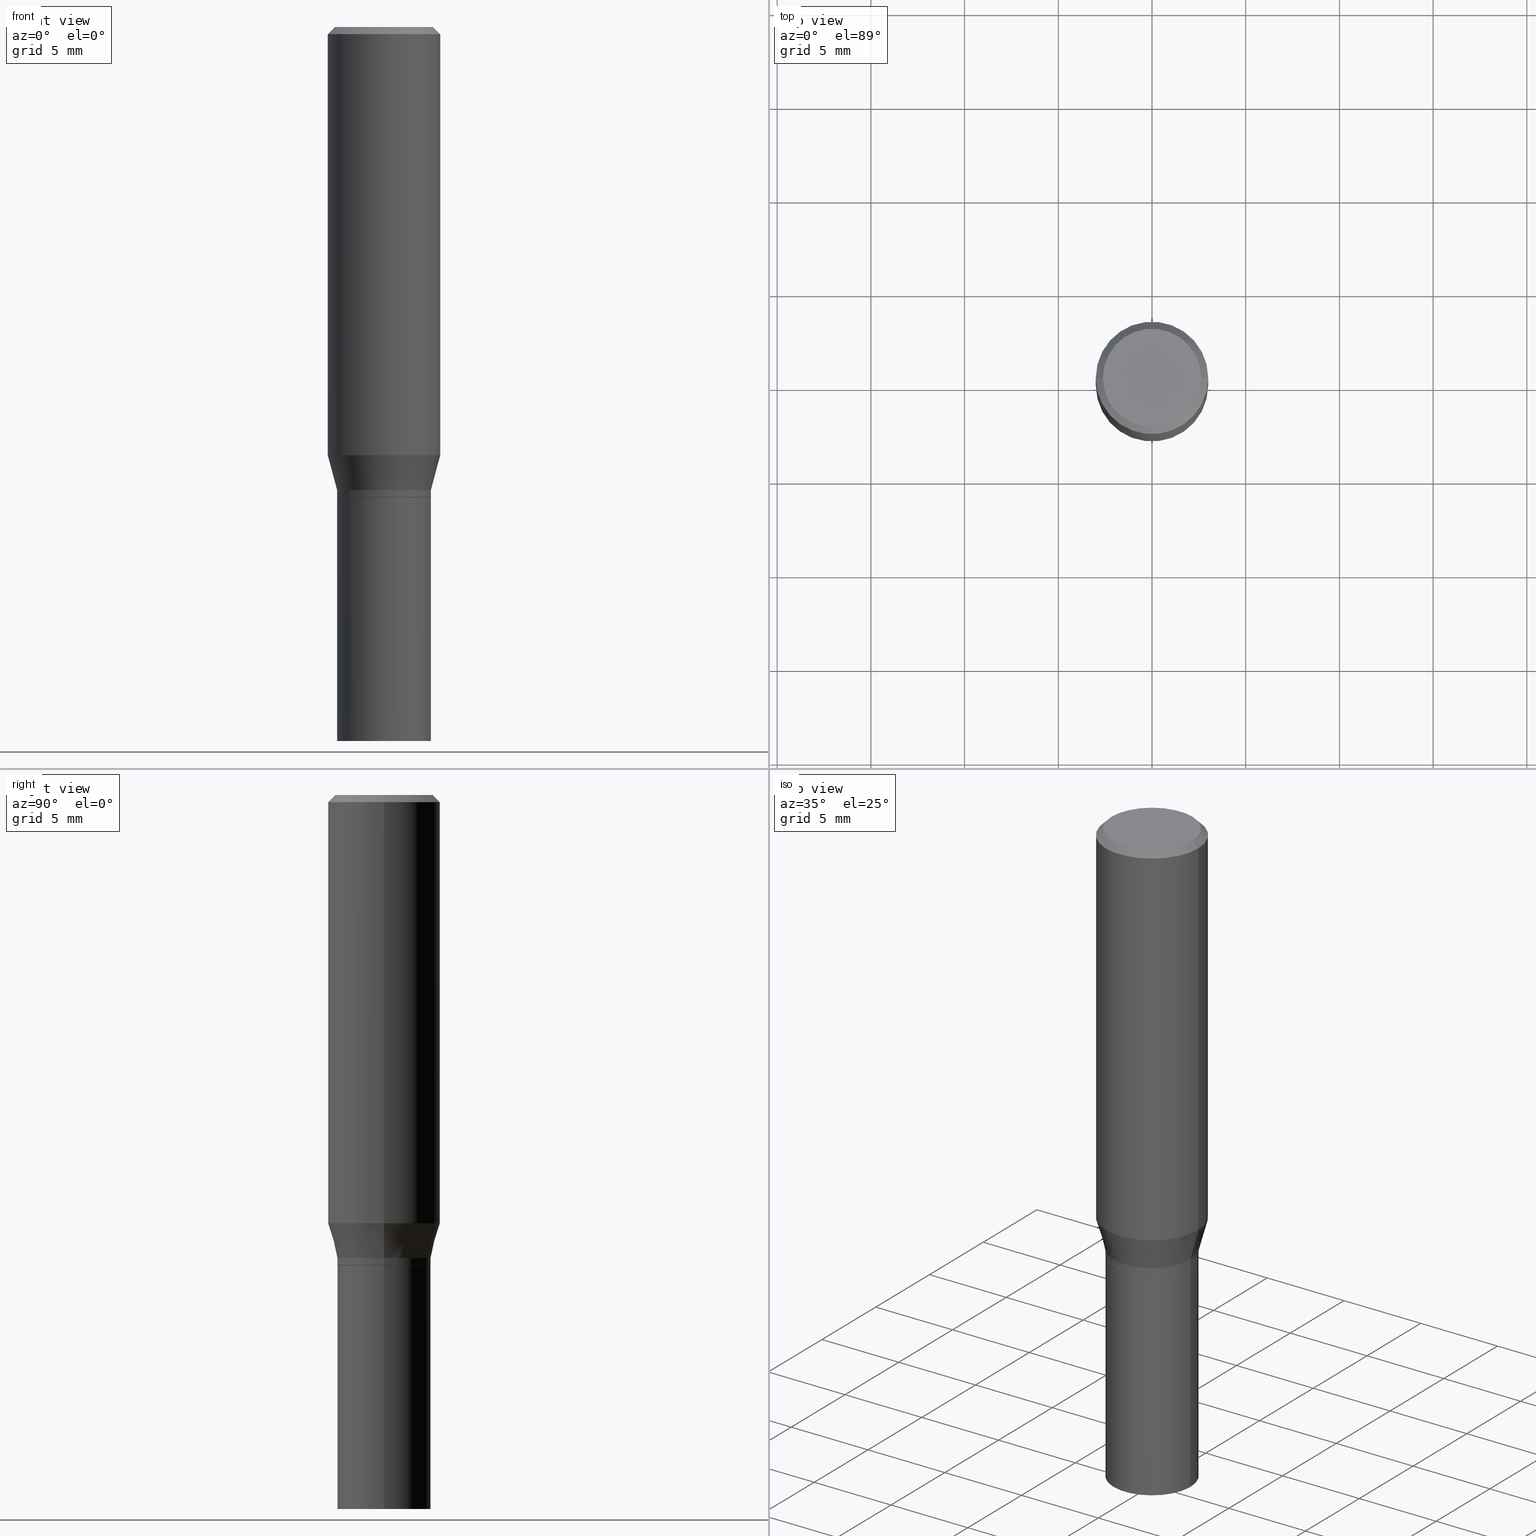
[diagram: canonical four-view strip — front | top / right | iso, engineering-drawing reading convention]
A machine part, canonical four-view strip (front | top / right | iso — engineering-drawing reading convention). The complete STEP part file that produces these views, byte-faithful:
ISO-10303-21;
HEADER;
FILE_DESCRIPTION (( 'STEP AP203' ),
    '1' );
FILE_NAME ('45486.STEP',
    '2024-03-12T19:25:15',
    ( '' ),
    ( '' ),
    'SwSTEP 2.0',
    'SolidWorks 2023',
    '' );
FILE_SCHEMA (( 'CONFIG_CONTROL_DESIGN' ));
ENDSEC;

DATA;
#1 = DIRECTION ( 'NONE',  ( -2.445468806185136597E-29, 3.491481338843145583E-15, 1.000000000000000000 ) ) ;
#2 = ORIENTED_EDGE ( 'NONE', *, *, #189, .F. ) ;
#3 = AXIS2_PLACEMENT_3D ( 'NONE', #118, #369, #191 ) ;
#4 = CIRCLE ( 'NONE', #10, 0.1030999999999999833 ) ;
#5 = CALENDAR_DATE ( 2024, 12, 3 ) ;
#6 = CARTESIAN_POINT ( 'NONE',  ( 0.000000000000000000, 0.000000000000000000, 0.000000000000000000 ) ) ;
#7 = LINE ( 'NONE', #446, #15 ) ;
#8 = DIRECTION ( 'NONE',  ( -1.000000000000000000, 6.982962677686266711E-15, 0.000000000000000000 ) ) ;
#9 = AXIS2_PLACEMENT_3D ( 'NONE', #224, #405, #8 ) ;
#10 = AXIS2_PLACEMENT_3D ( 'NONE', #273, #454, #458 ) ;
#11 = DIRECTION ( 'NONE',  ( -2.445468806185136597E-29, 3.491481338843145583E-15, 1.000000000000000000 ) ) ;
#12 = DIRECTION ( 'NONE',  ( 0.7071067811865500152, -7.319954787623263934E-15, -0.7071067811865450192 ) ) ;
#13 = CARTESIAN_POINT ( 'NONE',  ( -0.1030999999999999833, 7.461295621107773480E-16, -6.716606437695998257E-17 ) ) ;
#14 = APPROVAL ( #231, 'UNSPECIFIED' ) ;
#15 = VECTOR ( 'NONE', #409, 39.37007874015748143 ) ;
#16 = CARTESIAN_POINT ( 'NONE',  ( 2.379441148418138489E-29, -3.397211342694381629E-15, -0.9730000000000001981 ) ) ;
#17 = PERSON_AND_ORGANIZATION_ROLE ( 'creator' ) ;
#18 = CARTESIAN_POINT ( 'NONE',  ( 0.09845000000000005136, -6.874726756182133489E-16, 4.800596035771100615E-30 ) ) ;
#19 = ORIENTED_EDGE ( 'NONE', *, *, #332, .T. ) ;
#20 = CC_DESIGN_PERSON_AND_ORGANIZATION_ASSIGNMENT ( #466, #253, ( #453 ) ) ;
#21 = CARTESIAN_POINT ( 'NONE',  ( 2.416612274272152255E-29, -3.450281859044796915E-15, -0.9882000000000000783 ) ) ;
#22 = ORIENTED_EDGE ( 'NONE', *, *, #270, .F. ) ;
#23 = EDGE_LOOP ( 'NONE', ( #202, #406, #351, #205 ) ) ;
#24 = AXIS2_PLACEMENT_3D ( 'NONE', #232, #45, #89 ) ;
#25 = DIRECTION ( 'NONE',  ( 1.000000000000000000, -6.982962677686269077E-15, 0.000000000000000000 ) ) ;
#26 = CIRCLE ( 'NONE', #349, 0.09844999999999999585 ) ;
#27 = DIRECTION ( 'NONE',  ( -2.445468806185136877E-29, 3.491481338843145188E-15, 1.000000000000000000 ) ) ;
#28 = EDGE_LOOP ( 'NONE', ( #275, #239 ) ) ;
#29 = ADVANCED_FACE ( 'NONE', ( #37 ), #427, .T. ) ;
#30 = CARTESIAN_POINT ( 'NONE',  ( -0.1180999999999999966, -2.302013291769461857E-15, -0.8996652016312715050 ) ) ;
#31 = VERTEX_POINT ( 'NONE', #186 ) ;
#32 = ORIENTED_EDGE ( 'NONE', *, *, #332, .F. ) ;
#33 = CYLINDRICAL_SURFACE ( 'NONE', #50, 0.1180999999999999966 ) ;
#34 = VECTOR ( 'NONE', #234, 39.37007874015748143 ) ;
#35 = ORIENTED_EDGE ( 'NONE', *, *, #194, .F. ) ;
#36 = CALENDAR_DATE ( 2024, 12, 3 ) ;
#37 = FACE_OUTER_BOUND ( 'NONE', #71, .T. ) ;
#38 =( CONVERSION_BASED_UNIT ( 'INCH', #291 ) LENGTH_UNIT ( ) NAMED_UNIT ( #441 ) );
#39 = ADVANCED_FACE ( 'NONE', ( #331 ), #390, .T. ) ;
#40 = UNCERTAINTY_MEASURE_WITH_UNIT (LENGTH_MEASURE( 1.000000000000000082E-05 ), #38, 'distance_accuracy_value', 'NONE');
#41 = PERSON_AND_ORGANIZATION ( #443, #132 ) ;
#42 = DIRECTION ( 'NONE',  ( -2.445468806185136597E-29, 3.491481338843145583E-15, 1.000000000000000000 ) ) ;
#43 = AXIS2_PLACEMENT_3D ( 'NONE', #241, #376, #128 ) ;
#44 = APPROVAL_ROLE ( '' ) ;
#45 = DIRECTION ( 'NONE',  ( -2.445468806185136597E-29, 3.491481338843145583E-15, 1.000000000000000000 ) ) ;
#46 = ADVANCED_FACE ( 'NONE', ( #107 ), #108, .T. ) ;
#47 = DIRECTION ( 'NONE',  ( -2.445468806185136597E-29, 3.491481338843145583E-15, 1.000000000000000000 ) ) ;
#48 = CARTESIAN_POINT ( 'NONE',  ( 2.415389539869059734E-29, -3.448536118375375017E-15, -0.9877000000000001334 ) ) ;
#49 = AXIS2_PLACEMENT_3D ( 'NONE', #347, #312, #237 ) ;
#50 = AXIS2_PLACEMENT_3D ( 'NONE', #354, #175, #77 ) ;
#51 = FACE_OUTER_BOUND ( 'NONE', #192, .T. ) ;
#52 = EDGE_LOOP ( 'NONE', ( #320, #129, #355, #382 ) ) ;
#53 = FACE_OUTER_BOUND ( 'NONE', #135, .T. ) ;
#54 = CC_DESIGN_PERSON_AND_ORGANIZATION_ASSIGNMENT ( #148, #286, ( #455 ) ) ;
#55 = DATE_AND_TIME ( #124, #395 ) ;
#56 = CARTESIAN_POINT ( 'NONE',  ( 0.1180999999999999966, -8.246878922347480654E-16, 5.758764772215000440E-30 ) ) ;
#57 = DATE_AND_TIME ( #276, #408 ) ;
#58 = AXIS2_PLACEMENT_3D ( 'NONE', #247, #74, #209 ) ;
#59 = LINE ( 'NONE', #98, #271 ) ;
#60 = PERSON_AND_ORGANIZATION ( #443, #132 ) ;
#61 = ADVANCED_FACE ( 'NONE', ( #143 ), #393, .F. ) ;
#62 = CARTESIAN_POINT ( 'NONE',  ( -0.09844999999999988483, -2.499847655554012885E-15, -0.9730000000000001981 ) ) ;
#63 = CARTESIAN_POINT ( 'NONE',  ( 2.379441148418138489E-29, -3.397211342694381629E-15, -0.9730000000000001981 ) ) ;
#64 = ORIENTED_EDGE ( 'NONE', *, *, #377, .F. ) ;
#65 = PERSON_AND_ORGANIZATION ( #443, #132 ) ;
#66 = DIRECTION ( 'NONE',  ( -2.445468806185136597E-29, 3.491481338843145583E-15, 1.000000000000000000 ) ) ;
#67 = EDGE_CURVE ( 'NONE', #92, #420, #228, .T. ) ;
#68 = VERTEX_POINT ( 'NONE', #287 ) ;
#69 =( NAMED_UNIT ( * ) SI_UNIT ( $, .STERADIAN. ) SOLID_ANGLE_UNIT ( ) );
#70 = PRODUCT_RELATED_PRODUCT_CATEGORY ( 'detail', '', ( #453 ) ) ;
#71 = EDGE_LOOP ( 'NONE', ( #459, #385, #96, #278 ) ) ;
#72 = APPLICATION_PROTOCOL_DEFINITION ( 'international standard', 'config_control_design', 1994, #348 ) ;
#73 = DIRECTION ( 'NONE',  ( -2.445468806185136597E-29, 3.491481338843145583E-15, 1.000000000000000000 ) ) ;
#74 = DIRECTION ( 'NONE',  ( 2.438088387897960049E-29, -3.491481338843145188E-15, -1.000000000000000000 ) ) ;
#75 = DIRECTION ( 'NONE',  ( 1.000000000000000000, -6.982962677686265922E-15, 4.876176775795935793E-29 ) ) ;
#76 = ADVANCED_FACE ( 'NONE', ( #78 ), #281, .T. ) ;
#77 = DIRECTION ( 'NONE',  ( 1.000000000000000000, -6.982962677686266711E-15, 4.876176775795936353E-29 ) ) ;
#78 = FACE_OUTER_BOUND ( 'NONE', #311, .T. ) ;
#79 = EDGE_CURVE ( 'NONE', #456, #343, #122, .T. ) ;
#80 = CIRCLE ( 'NONE', #115, 0.09845000000000017626 ) ;
#81 = AXIS2_PLACEMENT_3D ( 'NONE', #352, #103, #415 ) ;
#82 = FACE_OUTER_BOUND ( 'NONE', #254, .T. ) ;
#83 = CARTESIAN_POINT ( 'NONE',  ( 0.09844999999999988483, -4.084684018312594189E-15, -0.9730000000000001981 ) ) ;
#84 = CARTESIAN_POINT ( 'NONE',  ( 0.1180999999999999966, -8.625970336194650129E-16, -0.01499999999999996995 ) ) ;
#85 = CLOSED_SHELL ( 'NONE', ( #29, #178, #203, #444, #109, #76, #39, #404, #437, #248, #308, #158 ) ) ;
#86 = CIRCLE ( 'NONE', #282, 0.09844999999999988483 ) ;
#87 = APPROVAL ( #366, 'UNSPECIFIED' ) ;
#88 = VECTOR ( 'NONE', #402, 39.37007874015748143 ) ;
#89 = DIRECTION ( 'NONE',  ( 1.000000000000000000, -6.982962677686266711E-15, 4.876176775795936353E-29 ) ) ;
#90 = CARTESIAN_POINT ( 'NONE',  ( -0.09845000000000005136, 6.995293233558189979E-16, -4.842691596355956844E-30 ) ) ;
#91 = DIRECTION ( 'NONE',  ( -2.445468806185136597E-29, 3.491481338843145583E-15, 1.000000000000000000 ) ) ;
#92 = VERTEX_POINT ( 'NONE', #154 ) ;
#93 = ADVANCED_BREP_SHAPE_REPRESENTATION ( '45486', ( #306, #153, #156 ), #104 ) ;
#94 = AXIS2_PLACEMENT_3D ( 'NONE', #361, #1, #323 ) ;
#95 = DIRECTION ( 'NONE',  ( -2.445468806185136877E-29, 3.491481338843145188E-15, 1.000000000000000000 ) ) ;
#96 = ORIENTED_EDGE ( 'NONE', *, *, #392, .F. ) ;
#97 = DATE_TIME_ROLE ( 'classification_date' ) ;
#98 = CARTESIAN_POINT ( 'NONE',  ( -0.09844999999999988483, -2.697682019338563913E-15, -0.9730000000000001981 ) ) ;
#99 = ORIENTED_EDGE ( 'NONE', *, *, #307, .F. ) ;
#100 = PLANE ( 'NONE',  #313 ) ;
#101 = ORIENTED_EDGE ( 'NONE', *, *, #294, .F. ) ;
#102 = CC_DESIGN_PERSON_AND_ORGANIZATION_ASSIGNMENT ( #378, #162, ( #116 ) ) ;
#103 = DIRECTION ( 'NONE',  ( 2.445468806185136597E-29, -3.491481338843145583E-15, -1.000000000000000000 ) ) ;
#104 =( GEOMETRIC_REPRESENTATION_CONTEXT ( 3 ) GLOBAL_UNCERTAINTY_ASSIGNED_CONTEXT ( ( #40 ) ) GLOBAL_UNIT_ASSIGNED_CONTEXT ( ( #38, #255, #69 ) ) REPRESENTATION_CONTEXT ( 'NONE', 'WORKASPACE' ) );
#105 = ORIENTED_EDGE ( 'NONE', *, *, #146, .F. ) ;
#106 = ORIENTED_EDGE ( 'NONE', *, *, #119, .T. ) ;
#107 = FACE_OUTER_BOUND ( 'NONE', #431, .T. ) ;
#108 = CYLINDRICAL_SURFACE ( 'NONE', #422, 0.09844999999999999585 ) ;
#109 = ADVANCED_FACE ( 'NONE', ( #227 ), #384, .T. ) ;
#110 = VECTOR ( 'NONE', #95, 39.37007874015748143 ) ;
#111 = EDGE_CURVE ( 'NONE', #144, #269, #292, .T. ) ;
#112 = EDGE_CURVE ( 'NONE', #176, #343, #7, .T. ) ;
#113 = CC_DESIGN_PERSON_AND_ORGANIZATION_ASSIGNMENT ( #126, #17, ( #123 ) ) ;
#114 = DIRECTION ( 'NONE',  ( 1.000000000000000000, -6.982962677686266711E-15, 4.876176775795935232E-29 ) ) ;
#115 = AXIS2_PLACEMENT_3D ( 'NONE', #48, #261, #226 ) ;
#116 = SECURITY_CLASSIFICATION ( '', '', #448 ) ;
#117 = DIRECTION ( 'NONE',  ( 2.438088387897960049E-29, -3.491481338843145188E-15, -1.000000000000000000 ) ) ;
#118 = CARTESIAN_POINT ( 'NONE',  ( 3.668203209277697643E-31, -5.237222008264707922E-17, -0.01499999999999996995 ) ) ;
#119 = EDGE_CURVE ( 'NONE', #172, #92, #436, .T. ) ;
#120 = ORIENTED_EDGE ( 'NONE', *, *, #112, .F. ) ;
#121 = DIRECTION ( 'NONE',  ( -2.445468806185136597E-29, 3.491481338843145583E-15, 1.000000000000000000 ) ) ;
#122 = CIRCLE ( 'NONE', #321, 0.09844999999999999585 ) ;
#123 = PRODUCT_DEFINITION_FORMATION_WITH_SPECIFIED_SOURCE ( 'ANY', '', #453, .NOT_KNOWN. ) ;
#124 = CALENDAR_DATE ( 2024, 12, 3 ) ;
#125 = CARTESIAN_POINT ( 'NONE',  ( 2.416612274272152255E-29, -3.450281859044796915E-15, -0.9882000000000000783 ) ) ;
#126 = PERSON_AND_ORGANIZATION ( #443, #132 ) ;
#127 = ADVANCED_FACE ( 'NONE', ( #53 ), #439, .F. ) ;
#128 = DIRECTION ( 'NONE',  ( 1.000000000000000000, -6.982962677686265133E-15, 0.000000000000000000 ) ) ;
#129 = ORIENTED_EDGE ( 'NONE', *, *, #240, .T. ) ;
#130 = FACE_OUTER_BOUND ( 'NONE', #23, .T. ) ;
#131 = AXIS2_PLACEMENT_3D ( 'NONE', #412, #121, #114 ) ;
#132 = ORGANIZATION ( 'UNSPECIFIED', 'UNSPECIFIED', '' ) ;
#133 = CARTESIAN_POINT ( 'NONE',  ( 3.668203209277697643E-31, -5.237222008264707922E-17, -0.01499999999999996995 ) ) ;
#134 = ORIENTED_EDGE ( 'NONE', *, *, #67, .F. ) ;
#135 = EDGE_LOOP ( 'NONE', ( #173, #391 ) ) ;
#136 = PRODUCT_DEFINITION_SHAPE ( 'NONE', 'NONE',  #455 ) ;
#137 = DIRECTION ( 'NONE',  ( -2.438088387897960049E-29, 3.491481338843145188E-15, 1.000000000000000000 ) ) ;
#138 = ORIENTED_EDGE ( 'NONE', *, *, #211, .T. ) ;
#139 = DIRECTION ( 'NONE',  ( -2.445468806185136877E-29, 3.491481338843145188E-15, 1.000000000000000000 ) ) ;
#140 = EDGE_LOOP ( 'NONE', ( #35, #284, #229, #22 ) ) ;
#141 = ORIENTED_EDGE ( 'NONE', *, *, #163, .F. ) ;
#142 = CIRCLE ( 'NONE', #359, 0.1030999999999999833 ) ;
#143 = FACE_OUTER_BOUND ( 'NONE', #342, .T. ) ;
#144 = VERTEX_POINT ( 'NONE', #434 ) ;
#145 = APPROVAL_ROLE ( '' ) ;
#146 = EDGE_CURVE ( 'NONE', #31, #200, #185, .T. ) ;
#147 = CARTESIAN_POINT ( 'NONE',  ( 3.576687321579069994E-29, -5.368277968210015545E-15, -1.500000000000000222 ) ) ;
#148 = PERSON_AND_ORGANIZATION ( #443, #132 ) ;
#149 = DIRECTION ( 'NONE',  ( 1.000000000000000000, -6.982962677686269077E-15, 0.000000000000000000 ) ) ;
#150 = CARTESIAN_POINT ( 'NONE',  ( 0.09844999999999999585, -4.137754534663009475E-15, -0.9882000000000000783 ) ) ;
#151 = COORDINATED_UNIVERSAL_TIME_OFFSET ( 5, 0, .BEHIND. ) ;
#152 = FACE_OUTER_BOUND ( 'NONE', #140, .T. ) ;
#153 = MANIFOLD_SOLID_BREP ( 'Body-Move/Copy2[2]', #85 ) ;
#154 = CARTESIAN_POINT ( 'NONE',  ( 0.1180999999999999966, -3.965852154936888711E-15, -0.8996652016312715050 ) ) ;
#155 = CONICAL_SURFACE ( 'NONE', #9, 0.1180999999999999966, 0.7853981633974518317 ) ;
#156 = AXIS2_PLACEMENT_3D ( 'NONE', #398, #357, #326 ) ;
#157 = DIRECTION ( 'NONE',  ( -2.445468806185136597E-29, 3.491481338843145583E-15, 1.000000000000000000 ) ) ;
#158 = ADVANCED_FACE ( 'NONE', ( #152 ), #295, .T. ) ;
#159 = LINE ( 'NONE', #440, #268 ) ;
#160 = CARTESIAN_POINT ( 'NONE',  ( 2.416612274272151975E-29, -3.450281859044796521E-15, -0.9881999999999999673 ) ) ;
#161 = PERSON_AND_ORGANIZATION ( #443, #132 ) ;
#162 = PERSON_AND_ORGANIZATION_ROLE ( 'classification_officer' ) ;
#163 = EDGE_CURVE ( 'NONE', #68, #389, #80, .T. ) ;
#164 = DIRECTION ( 'NONE',  ( -2.445468806185136597E-29, 3.491481338843145583E-15, 1.000000000000000000 ) ) ;
#165 = SHAPE_DEFINITION_REPRESENTATION ( #136, #93 ) ;
#166 = DIRECTION ( 'NONE',  ( -2.445468806185136597E-29, 3.491481338843145583E-15, 1.000000000000000000 ) ) ;
#167 = ORIENTED_EDGE ( 'NONE', *, *, #225, .F. ) ;
#168 = APPROVAL_DATE_TIME ( #55, #14 ) ;
#169 = DIRECTION ( 'NONE',  ( -0.7071067811865500152, 2.468850131082282699E-15, -0.7071067811865450192 ) ) ;
#170 = APPROVAL_PERSON_ORGANIZATION ( #60, #14, #198 ) ;
#171 = FACE_OUTER_BOUND ( 'NONE', #28, .T. ) ;
#172 = VERTEX_POINT ( 'NONE', #262 ) ;
#173 = ORIENTED_EDGE ( 'NONE', *, *, #79, .T. ) ;
#174 = LINE ( 'NONE', #56, #34 ) ;
#175 = DIRECTION ( 'NONE',  ( -2.445468806185136597E-29, 3.491481338843145583E-15, 1.000000000000000000 ) ) ;
#176 = VERTEX_POINT ( 'NONE', #265 ) ;
#177 = ADVANCED_FACE ( 'NONE', ( #51 ), #187, .T. ) ;
#178 = ADVANCED_FACE ( 'NONE', ( #190 ), #463, .T. ) ;
#179 = AXIS2_PLACEMENT_3D ( 'NONE', #147, #399, #75 ) ;
#180 = CIRCLE ( 'NONE', #197, 0.1180999999999999966 ) ;
#181 = DIRECTION ( 'NONE',  ( 1.000000000000000000, -6.982962677686266711E-15, 4.876176775795936353E-29 ) ) ;
#182 = FACE_OUTER_BOUND ( 'NONE', #327, .T. ) ;
#183 = DATE_TIME_ROLE ( 'creation_date' ) ;
#184 = ORIENTED_EDGE ( 'NONE', *, *, #360, .T. ) ;
#185 = CIRCLE ( 'NONE', #3, 0.1180999999999999966 ) ;
#186 = CARTESIAN_POINT ( 'NONE',  ( -0.1180999999999999966, -7.576172704597157638E-16, -0.01499999999999996995 ) ) ;
#187 = CYLINDRICAL_SURFACE ( 'NONE', #24, 0.09844999999999999585 ) ;
#188 = DIRECTION ( 'NONE',  ( 1.000000000000000000, -6.982962677686265133E-15, 0.000000000000000000 ) ) ;
#189 = EDGE_CURVE ( 'NONE', #176, #345, #26, .T. ) ;
#190 = FACE_OUTER_BOUND ( 'NONE', #305, .T. ) ;
#191 = DIRECTION ( 'NONE',  ( 1.000000000000000000, -6.982962677686266711E-15, 0.000000000000000000 ) ) ;
#192 = EDGE_LOOP ( 'NONE', ( #387, #310, #346, #99 ) ) ;
#193 = DIRECTION ( 'NONE',  ( 1.000000000000000000, -6.982962677686265922E-15, 0.000000000000000000 ) ) ;
#194 = EDGE_CURVE ( 'NONE', #389, #272, #337, .T. ) ;
#195 = CARTESIAN_POINT ( 'NONE',  ( -0.09794999999999999540, -2.751656022193666924E-15, -0.9881999999999999673 ) ) ;
#196 = CC_DESIGN_DATE_AND_TIME_ASSIGNMENT ( #362, #183, ( #455 ) ) ;
#197 = AXIS2_PLACEMENT_3D ( 'NONE', #133, #267, #417 ) ;
#198 = APPROVAL_ROLE ( '' ) ;
#199 = DIRECTION ( 'NONE',  ( -0.2588190451025210725, 5.211531920934548675E-15, 0.9659258262890682012 ) ) ;
#200 = VERTEX_POINT ( 'NONE', #338 ) ;
#201 = CARTESIAN_POINT ( 'NONE',  ( 0.09844999999999999585, -6.874726756182129545E-16, 4.800596035771099214E-30 ) ) ;
#202 = ORIENTED_EDGE ( 'NONE', *, *, #211, .F. ) ;
#203 = ADVANCED_FACE ( 'NONE', ( #82 ), #155, .T. ) ;
#204 = DIRECTION ( 'NONE',  ( -2.445468806185136597E-29, 3.491481338843145583E-15, 1.000000000000000000 ) ) ;
#205 = ORIENTED_EDGE ( 'NONE', *, *, #146, .T. ) ;
#206 = CLOSED_SHELL ( 'NONE', ( #177, #61, #46, #127 ) ) ;
#207 = LINE ( 'NONE', #449, #302 ) ;
#208 = ORIENTED_EDGE ( 'NONE', *, *, #397, .F. ) ;
#209 = DIRECTION ( 'NONE',  ( -1.000000000000000000, 6.982962677686265922E-15, -4.876176775795935793E-29 ) ) ;
#210 = ORIENTED_EDGE ( 'NONE', *, *, #411, .F. ) ;
#211 = EDGE_CURVE ( 'NONE', #424, #200, #336, .T. ) ;
#212 = APPROVAL_STATUS ( 'not_yet_approved' ) ;
#213 = AXIS2_PLACEMENT_3D ( 'NONE', #333, #367, #263 ) ;
#214 = VECTOR ( 'NONE', #218, 39.37007874015748143 ) ;
#215 = APPLICATION_PROTOCOL_DEFINITION ( 'international standard', 'config_control_design', 1994, #217 ) ;
#216 = CARTESIAN_POINT ( 'NONE',  ( 2.200103186599535672E-29, -3.141164262702140448E-15, -0.8996652016312715050 ) ) ;
#217 = APPLICATION_CONTEXT ( 'configuration controlled 3d designs of mechanical parts and assemblies' ) ;
#218 = DIRECTION ( 'NONE',  ( -0.7071067811867527420, 7.493145998871095689E-15, 0.7071067811863422925 ) ) ;
#219 = CARTESIAN_POINT ( 'NONE',  ( 2.379441148418138489E-29, -3.397211342694381629E-15, -0.9730000000000001981 ) ) ;
#220 = MECHANICAL_CONTEXT ( 'NONE', #217, 'mechanical' ) ;
#221 = VERTEX_POINT ( 'NONE', #13 ) ;
#222 = AXIS2_PLACEMENT_3D ( 'NONE', #216, #325, #149 ) ;
#223 = COORDINATED_UNIVERSAL_TIME_OFFSET ( 5, 0, .BEHIND. ) ;
#224 = CARTESIAN_POINT ( 'NONE',  ( 3.668203209277697643E-31, -5.237222008264707922E-17, -0.01499999999999996995 ) ) ;
#225 = EDGE_CURVE ( 'NONE', #144, #68, #159, .T. ) ;
#226 = DIRECTION ( 'NONE',  ( 1.000000000000000000, -6.982962677686267499E-15, 0.000000000000000000 ) ) ;
#227 = FACE_OUTER_BOUND ( 'NONE', #353, .T. ) ;
#228 = CIRCLE ( 'NONE', #222, 0.1180999999999999966 ) ;
#229 = ORIENTED_EDGE ( 'NONE', *, *, #260, .T. ) ;
#230 = DIRECTION ( 'NONE',  ( 1.000000000000000000, -6.982962677686265133E-15, 0.000000000000000000 ) ) ;
#231 = APPROVAL_STATUS ( 'not_yet_approved' ) ;
#232 = CARTESIAN_POINT ( 'NONE',  ( 0.000000000000000000, 0.000000000000000000, 0.000000000000000000 ) ) ;
#233 = PERSON_AND_ORGANIZATION_ROLE ( 'design_supplier' ) ;
#234 = DIRECTION ( 'NONE',  ( -2.445468806185136877E-29, 3.491481338843145188E-15, 1.000000000000000000 ) ) ;
#235 = ORIENTED_EDGE ( 'NONE', *, *, #111, .T. ) ;
#236 = CC_DESIGN_SECURITY_CLASSIFICATION ( #116, ( #123 ) ) ;
#237 = DIRECTION ( 'NONE',  ( 1.000000000000000000, -6.982962677686265133E-15, 0.000000000000000000 ) ) ;
#238 = ORIENTED_EDGE ( 'NONE', *, *, #189, .T. ) ;
#239 = ORIENTED_EDGE ( 'NONE', *, *, #240, .F. ) ;
#240 = EDGE_CURVE ( 'NONE', #269, #144, #251, .T. ) ;
#241 = CARTESIAN_POINT ( 'NONE',  ( 2.416612274272151975E-29, -3.450281859044796521E-15, -0.9881999999999999673 ) ) ;
#242 = ORIENTED_EDGE ( 'NONE', *, *, #270, .T. ) ;
#243 = ORIENTED_EDGE ( 'NONE', *, *, #371, .F. ) ;
#244 = LINE ( 'NONE', #201, #246 ) ;
#245 = ORIENTED_EDGE ( 'NONE', *, *, #307, .T. ) ;
#246 = VECTOR ( 'NONE', #27, 39.37007874015748143 ) ;
#247 = CARTESIAN_POINT ( 'NONE',  ( 7.199434520694539070E-16, 0.1030999999999999833, -3.935547582232057245E-16 ) ) ;
#248 = ADVANCED_FACE ( 'NONE', ( #171 ), #100, .F. ) ;
#249 = CARTESIAN_POINT ( 'NONE',  ( 0.1030999999999999833, -7.849571885948550734E-16, -6.716606437694960412E-17 ) ) ;
#250 = CARTESIAN_POINT ( 'NONE',  ( 0.000000000000000000, 0.000000000000000000, 0.000000000000000000 ) ) ;
#251 = CIRCLE ( 'NONE', #49, 0.09794999999999999540 ) ;
#252 = CIRCLE ( 'NONE', #297, 0.1180999999999999966 ) ;
#253 = PERSON_AND_ORGANIZATION_ROLE ( 'design_owner' ) ;
#254 = EDGE_LOOP ( 'NONE', ( #101, #138, #184, #374 ) ) ;
#255 =( NAMED_UNIT ( * ) PLANE_ANGLE_UNIT ( ) SI_UNIT ( $, .RADIAN. ) );
#256 = ORIENTED_EDGE ( 'NONE', *, *, #365, .F. ) ;
#257 = DIRECTION ( 'NONE',  ( 1.000000000000000000, -6.982962677686266711E-15, 4.876176775795935232E-29 ) ) ;
#258 = CIRCLE ( 'NONE', #94, 0.09845000000000017626 ) ;
#259 = CARTESIAN_POINT ( 'NONE',  ( 2.416612274272151975E-29, -3.450281859044796521E-15, -0.9881999999999999673 ) ) ;
#260 = EDGE_CURVE ( 'NONE', #68, #172, #460, .T. ) ;
#261 = DIRECTION ( 'NONE',  ( -2.445468806185136597E-29, 3.491481338843145583E-15, 1.000000000000000000 ) ) ;
#262 = CARTESIAN_POINT ( 'NONE',  ( 0.09844999999999988483, -4.084684018312594189E-15, -0.9730000000000001981 ) ) ;
#263 = DIRECTION ( 'NONE',  ( 1.000000000000000000, -6.982962677686269077E-15, 0.000000000000000000 ) ) ;
#264 = CC_DESIGN_DATE_AND_TIME_ASSIGNMENT ( #57, #97, ( #116 ) ) ;
#265 = CARTESIAN_POINT ( 'NONE',  ( -0.09844999999999999585, -3.644222610298939041E-15, -1.500000000000000222 ) ) ;
#266 = DIRECTION ( 'NONE',  ( 1.000000000000000000, -6.982962677686269077E-15, 0.000000000000000000 ) ) ;
#267 = DIRECTION ( 'NONE',  ( -2.445468806185136597E-29, 3.491481338843145583E-15, 1.000000000000000000 ) ) ;
#268 = VECTOR ( 'NONE', #339, 39.37007874015748143 ) ;
#269 = VERTEX_POINT ( 'NONE', #195 ) ;
#270 = EDGE_CURVE ( 'NONE', #272, #172, #370, .T. ) ;
#271 = VECTOR ( 'NONE', #199, 39.37007874015748143 ) ;
#272 = VERTEX_POINT ( 'NONE', #62 ) ;
#273 = CARTESIAN_POINT ( 'NONE',  ( 1.642525152680658333E-45, -2.345090603756752382E-31, -6.716606437695485497E-17 ) ) ;
#274 = ORIENTED_EDGE ( 'NONE', *, *, #360, .F. ) ;
#275 = ORIENTED_EDGE ( 'NONE', *, *, #111, .F. ) ;
#276 = CALENDAR_DATE ( 2024, 12, 3 ) ;
#277 = CARTESIAN_POINT ( 'NONE',  ( 1.642525152680658333E-45, -2.345090603756752382E-31, -6.716606437695485497E-17 ) ) ;
#278 = ORIENTED_EDGE ( 'NONE', *, *, #260, .F. ) ;
#279 = DIRECTION ( 'NONE',  ( -2.445468806185136597E-29, 3.491481338843145583E-15, 1.000000000000000000 ) ) ;
#280 = EDGE_LOOP ( 'NONE', ( #316, #438, #274, #243 ) ) ;
#281 = CONICAL_SURFACE ( 'NONE', #289, 0.09844999999999988483, 0.2617993877991497409 ) ;
#282 = AXIS2_PLACEMENT_3D ( 'NONE', #63, #204, #25 ) ;
#283 = PLANE ( 'NONE',  #58 ) ;
#284 = ORIENTED_EDGE ( 'NONE', *, *, #425, .T. ) ;
#285 = APPROVAL_DATE_TIME ( #330, #432 ) ;
#286 = PERSON_AND_ORGANIZATION_ROLE ( 'creator' ) ;
#287 = CARTESIAN_POINT ( 'NONE',  ( 0.09845000000000017626, -4.136008793993589549E-15, -0.9877000000000001334 ) ) ;
#288 = EDGE_CURVE ( 'NONE', #221, #424, #4, .T. ) ;
#289 = AXIS2_PLACEMENT_3D ( 'NONE', #219, #11, #299 ) ;
#290 = VECTOR ( 'NONE', #169, 39.37007874015748143 ) ;
#291 = LENGTH_MEASURE_WITH_UNIT ( LENGTH_MEASURE( 0.02539999999999999897 ), #388 );
#292 = CIRCLE ( 'NONE', #400, 0.09794999999999999540 ) ;
#293 = FACE_OUTER_BOUND ( 'NONE', #280, .T. ) ;
#294 = EDGE_CURVE ( 'NONE', #424, #221, #142, .T. ) ;
#295 = CYLINDRICAL_SURFACE ( 'NONE', #131, 0.09845000000000005136 ) ;
#296 = CIRCLE ( 'NONE', #464, 0.09844999999999999585 ) ;
#297 = AXIS2_PLACEMENT_3D ( 'NONE', #344, #91, #266 ) ;
#298 = CARTESIAN_POINT ( 'NONE',  ( 6.874726756182369161E-16, 0.09844999999999654028, -0.9882000000000005224 ) ) ;
#299 = DIRECTION ( 'NONE',  ( 1.000000000000000000, -6.982962677686269077E-15, 0.000000000000000000 ) ) ;
#300 = DIRECTION ( 'NONE',  ( -2.445468806185136597E-29, 3.491481338843145583E-15, 1.000000000000000000 ) ) ;
#301 = CARTESIAN_POINT ( 'NONE',  ( 3.668203209277704895E-29, -5.237222008264718177E-15, -1.500000000000000222 ) ) ;
#302 = VECTOR ( 'NONE', #139, 39.37007874015748143 ) ;
#303 = CALENDAR_DATE ( 2024, 12, 3 ) ;
#304 = DIRECTION ( 'NONE',  ( 1.000000000000000000, -6.982962677686265922E-15, 0.000000000000000000 ) ) ;
#305 = EDGE_LOOP ( 'NONE', ( #235, #465, #141, #167 ) ) ;
#306 = MANIFOLD_SOLID_BREP ( 'Body-Move/Copy2[1]', #206 ) ;
#307 = EDGE_CURVE ( 'NONE', #345, #456, #244, .T. ) ;
#308 = ADVANCED_FACE ( 'NONE', ( #447 ), #401, .T. ) ;
#309 = DIRECTION ( 'NONE',  ( 1.000000000000000000, -6.982962677686265922E-15, 4.876176775795935793E-29 ) ) ;
#310 = ORIENTED_EDGE ( 'NONE', *, *, #112, .T. ) ;
#311 = EDGE_LOOP ( 'NONE', ( #64, #242, #106, #32 ) ) ;
#312 = DIRECTION ( 'NONE',  ( -2.445468806185136597E-29, 3.491481338843145583E-15, 1.000000000000000000 ) ) ;
#313 = AXIS2_PLACEMENT_3D ( 'NONE', #21, #137, #309 ) ;
#314 = CONICAL_SURFACE ( 'NONE', #81, 0.1180999999999999966, 0.7853981633974518317 ) ;
#315 = LINE ( 'NONE', #383, #290 ) ;
#316 = ORIENTED_EDGE ( 'NONE', *, *, #67, .T. ) ;
#317 = CARTESIAN_POINT ( 'NONE',  ( 2.416612274272152255E-29, -3.450281859044796915E-15, -0.9882000000000000783 ) ) ;
#318 = ORIENTED_EDGE ( 'NONE', *, *, #371, .T. ) ;
#319 = CC_DESIGN_PERSON_AND_ORGANIZATION_ASSIGNMENT ( #65, #233, ( #123 ) ) ;
#320 = ORIENTED_EDGE ( 'NONE', *, *, #462, .F. ) ;
#321 = AXIS2_PLACEMENT_3D ( 'NONE', #125, #157, #403 ) ;
#322 = CC_DESIGN_APPROVAL ( #432, ( #455 ) ) ;
#323 = DIRECTION ( 'NONE',  ( 1.000000000000000000, -6.982962677686267499E-15, 0.000000000000000000 ) ) ;
#324 = CARTESIAN_POINT ( 'NONE',  ( -0.09794999999999999540, -2.754305249367778520E-15, -0.9881999999999999673 ) ) ;
#325 = DIRECTION ( 'NONE',  ( -2.445468806185136597E-29, 3.491481338843145583E-15, 1.000000000000000000 ) ) ;
#326 = DIRECTION ( 'NONE',  ( 1.000000000000000000, 0.000000000000000000, 0.000000000000000000 ) ) ;
#327 = EDGE_LOOP ( 'NONE', ( #418, #450 ) ) ;
#328 = AXIS2_PLACEMENT_3D ( 'NONE', #364, #42, #257 ) ;
#329 = AXIS2_PLACEMENT_3D ( 'NONE', #341, #66, #304 ) ;
#330 = DATE_AND_TIME ( #36, #372 ) ;
#331 = FACE_OUTER_BOUND ( 'NONE', #461, .T. ) ;
#332 = EDGE_CURVE ( 'NONE', #420, #92, #252, .T. ) ;
#333 = CARTESIAN_POINT ( 'NONE',  ( 2.379441148418138489E-29, -3.397211342694381629E-15, -0.9730000000000001981 ) ) ;
#334 = DIRECTION ( 'NONE',  ( 0.2588190451025210725, 1.565188264969624137E-15, 0.9659258262890682012 ) ) ;
#335 = LOCAL_TIME ( 15, 25, 15.00000000000000000, #223 ) ;
#336 = LINE ( 'NONE', #84, #407 ) ;
#337 = LINE ( 'NONE', #90, #88 ) ;
#338 = CARTESIAN_POINT ( 'NONE',  ( 0.1180999999999999966, -8.770601123173952432E-16, -0.01499999999999996995 ) ) ;
#339 = DIRECTION ( 'NONE',  ( 0.7071067811867527420, -2.468850131084406312E-15, 0.7071067811863422925 ) ) ;
#340 = EDGE_CURVE ( 'NONE', #221, #31, #315, .T. ) ;
#341 = CARTESIAN_POINT ( 'NONE',  ( 3.668203209277704895E-29, -5.237222008264718177E-15, -1.500000000000000222 ) ) ;
#342 = EDGE_LOOP ( 'NONE', ( #256, #2 ) ) ;
#343 = VERTEX_POINT ( 'NONE', #413 ) ;
#344 = CARTESIAN_POINT ( 'NONE',  ( 2.200103186599535672E-29, -3.141164262702140448E-15, -0.8996652016312715050 ) ) ;
#345 = VERTEX_POINT ( 'NONE', #379 ) ;
#346 = ORIENTED_EDGE ( 'NONE', *, *, #79, .F. ) ;
#347 = CARTESIAN_POINT ( 'NONE',  ( 2.416612274272151975E-29, -3.450281859044796521E-15, -0.9881999999999999673 ) ) ;
#348 = APPLICATION_CONTEXT ( 'configuration controlled 3d designs of mechanical parts and assemblies' ) ;
#349 = AXIS2_PLACEMENT_3D ( 'NONE', #301, #375, #193 ) ;
#350 = CC_DESIGN_APPROVAL ( #87, ( #123 ) ) ;
#351 = ORIENTED_EDGE ( 'NONE', *, *, #340, .T. ) ;
#352 = CARTESIAN_POINT ( 'NONE',  ( 3.668203209277697643E-31, -5.237222008264707922E-17, -0.01499999999999996995 ) ) ;
#353 = EDGE_LOOP ( 'NONE', ( #356, #451, #134, #358 ) ) ;
#354 = CARTESIAN_POINT ( 'NONE',  ( 0.000000000000000000, 0.000000000000000000, 0.000000000000000000 ) ) ;
#355 = ORIENTED_EDGE ( 'NONE', *, *, #225, .T. ) ;
#356 = ORIENTED_EDGE ( 'NONE', *, *, #392, .T. ) ;
#357 = DIRECTION ( 'NONE',  ( 0.000000000000000000, 0.000000000000000000, 1.000000000000000000 ) ) ;
#358 = ORIENTED_EDGE ( 'NONE', *, *, #119, .F. ) ;
#359 = AXIS2_PLACEMENT_3D ( 'NONE', #277, #166, #419 ) ;
#360 = EDGE_CURVE ( 'NONE', #200, #31, #180, .T. ) ;
#361 = CARTESIAN_POINT ( 'NONE',  ( 2.415389539869059734E-29, -3.448536118375375017E-15, -0.9877000000000001334 ) ) ;
#362 = DATE_AND_TIME ( #5, #416 ) ;
#363 = DIRECTION ( 'NONE',  ( -2.445468806185136597E-29, 3.491481338843145583E-15, 1.000000000000000000 ) ) ;
#364 = CARTESIAN_POINT ( 'NONE',  ( 0.000000000000000000, 0.000000000000000000, 0.000000000000000000 ) ) ;
#365 = EDGE_CURVE ( 'NONE', #345, #176, #445, .T. ) ;
#366 = APPROVAL_STATUS ( 'not_yet_approved' ) ;
#367 = DIRECTION ( 'NONE',  ( -2.445468806185136597E-29, 3.491481338843145583E-15, 1.000000000000000000 ) ) ;
#368 = DESIGN_CONTEXT ( 'detailed design', #348, 'design' ) ;
#369 = DIRECTION ( 'NONE',  ( -2.445468806185136597E-29, 3.491481338843145583E-15, 1.000000000000000000 ) ) ;
#370 = CIRCLE ( 'NONE', #428, 0.09844999999999988483 ) ;
#371 = EDGE_CURVE ( 'NONE', #92, #200, #174, .T. ) ;
#372 = LOCAL_TIME ( 15, 25, 15.00000000000000000, #151 ) ;
#373 = DIRECTION ( 'NONE',  ( -1.000000000000000000, 6.982962677686265922E-15, -4.876176775795935793E-29 ) ) ;
#374 = ORIENTED_EDGE ( 'NONE', *, *, #340, .F. ) ;
#375 = DIRECTION ( 'NONE',  ( -2.445468806185136597E-29, 3.491481338843145583E-15, 1.000000000000000000 ) ) ;
#376 = DIRECTION ( 'NONE',  ( -2.445468806185136597E-29, 3.491481338843145583E-15, 1.000000000000000000 ) ) ;
#377 = EDGE_CURVE ( 'NONE', #272, #420, #59, .T. ) ;
#378 = PERSON_AND_ORGANIZATION ( #443, #132 ) ;
#379 = CARTESIAN_POINT ( 'NONE',  ( 0.09844999999999999585, -5.924694683882931526E-15, -1.500000000000000222 ) ) ;
#380 = DIRECTION ( 'NONE',  ( 1.000000000000000000, -6.982962677686269077E-15, 0.000000000000000000 ) ) ;
#381 = CARTESIAN_POINT ( 'NONE',  ( -0.09845000000000017626, -2.749006795019555329E-15, -0.9877000000000001334 ) ) ;
#382 = ORIENTED_EDGE ( 'NONE', *, *, #425, .F. ) ;
#383 = CARTESIAN_POINT ( 'NONE',  ( -0.1180999999999999966, 7.723156721521009862E-16, -0.01499999999999996995 ) ) ;
#384 = CONICAL_SURFACE ( 'NONE', #213, 0.09844999999999988483, 0.2617993877991497409 ) ;
#385 = ORIENTED_EDGE ( 'NONE', *, *, #194, .T. ) ;
#386 = CC_DESIGN_APPROVAL ( #14, ( #116 ) ) ;
#387 = ORIENTED_EDGE ( 'NONE', *, *, #365, .T. ) ;
#388 =( LENGTH_UNIT ( ) NAMED_UNIT ( * ) SI_UNIT ( $, .METRE. ) );
#389 = VERTEX_POINT ( 'NONE', #381 ) ;
#390 = CYLINDRICAL_SURFACE ( 'NONE', #430, 0.1180999999999999966 ) ;
#391 = ORIENTED_EDGE ( 'NONE', *, *, #411, .T. ) ;
#392 = EDGE_CURVE ( 'NONE', #172, #272, #86, .T. ) ;
#393 = PLANE ( 'NONE',  #179 ) ;
#394 = AXIS2_PLACEMENT_3D ( 'NONE', #160, #300, #188 ) ;
#395 = LOCAL_TIME ( 15, 25, 15.00000000000000000, #442 ) ;
#396 = COORDINATED_UNIVERSAL_TIME_OFFSET ( 5, 0, .BEHIND. ) ;
#397 = EDGE_CURVE ( 'NONE', #420, #31, #207, .T. ) ;
#398 = CARTESIAN_POINT ( 'NONE',  ( 0.000000000000000000, 0.000000000000000000, 0.000000000000000000 ) ) ;
#399 = DIRECTION ( 'NONE',  ( -2.438088387897960049E-29, 3.491481338843145188E-15, 1.000000000000000000 ) ) ;
#400 = AXIS2_PLACEMENT_3D ( 'NONE', #259, #47, #230 ) ;
#401 = CONICAL_SURFACE ( 'NONE', #43, 0.09794999999999999540, 0.7853981633977384913 ) ;
#402 = DIRECTION ( 'NONE',  ( -2.445468806185136877E-29, 3.491481338843145188E-15, 1.000000000000000000 ) ) ;
#403 = DIRECTION ( 'NONE',  ( 1.000000000000000000, -6.982962677686265922E-15, 0.000000000000000000 ) ) ;
#404 = ADVANCED_FACE ( 'NONE', ( #130 ), #314, .T. ) ;
#405 = DIRECTION ( 'NONE',  ( 2.445468806185136597E-29, -3.491481338843145583E-15, -1.000000000000000000 ) ) ;
#406 = ORIENTED_EDGE ( 'NONE', *, *, #288, .F. ) ;
#407 = VECTOR ( 'NONE', #12, 39.37007874015748143 ) ;
#408 = LOCAL_TIME ( 15, 25, 15.00000000000000000, #457 ) ;
#409 = DIRECTION ( 'NONE',  ( -2.445468806185136877E-29, 3.491481338843145188E-15, 1.000000000000000000 ) ) ;
#410 = APPROVAL_DATE_TIME ( #452, #87 ) ;
#411 = EDGE_CURVE ( 'NONE', #343, #456, #296, .T. ) ;
#412 = CARTESIAN_POINT ( 'NONE',  ( 0.000000000000000000, 0.000000000000000000, 0.000000000000000000 ) ) ;
#413 = CARTESIAN_POINT ( 'NONE',  ( -0.09844999999999999585, -3.644222610298939041E-15, -0.9882000000000000783 ) ) ;
#414 = AXIS2_PLACEMENT_3D ( 'NONE', #298, #117, #373 ) ;
#415 = DIRECTION ( 'NONE',  ( -1.000000000000000000, 6.982962677686266711E-15, 0.000000000000000000 ) ) ;
#416 = LOCAL_TIME ( 15, 25, 15.00000000000000000, #396 ) ;
#417 = DIRECTION ( 'NONE',  ( 1.000000000000000000, -6.982962677686266711E-15, 0.000000000000000000 ) ) ;
#418 = ORIENTED_EDGE ( 'NONE', *, *, #288, .T. ) ;
#419 = DIRECTION ( 'NONE',  ( 1.000000000000000000, -6.982962677686268288E-15, 4.875976817586845596E-29 ) ) ;
#420 = VERTEX_POINT ( 'NONE', #30 ) ;
#421 = DIRECTION ( 'NONE',  ( 1.000000000000000000, -6.982962677686265922E-15, 0.000000000000000000 ) ) ;
#422 = AXIS2_PLACEMENT_3D ( 'NONE', #250, #363, #181 ) ;
#423 = APPROVAL_PERSON_ORGANIZATION ( #161, #87, #44 ) ;
#424 = VERTEX_POINT ( 'NONE', #249 ) ;
#425 = EDGE_CURVE ( 'NONE', #389, #68, #258, .T. ) ;
#426 = DIRECTION ( 'NONE',  ( 1.000000000000000000, -6.982962677686266711E-15, 4.876176775795936353E-29 ) ) ;
#427 = CYLINDRICAL_SURFACE ( 'NONE', #328, 0.09845000000000005136 ) ;
#428 = AXIS2_PLACEMENT_3D ( 'NONE', #16, #164, #380 ) ;
#429 = APPROVAL_PERSON_ORGANIZATION ( #41, #432, #145 ) ;
#430 = AXIS2_PLACEMENT_3D ( 'NONE', #6, #73, #426 ) ;
#431 = EDGE_LOOP ( 'NONE', ( #120, #238, #245, #210 ) ) ;
#432 = APPROVAL ( #212, 'UNSPECIFIED' ) ;
#433 = LINE ( 'NONE', #324, #214 ) ;
#434 = CARTESIAN_POINT ( 'NONE',  ( 0.09794999999999999540, -4.134263053324165679E-15, -0.9881999999999999673 ) ) ;
#435 = VECTOR ( 'NONE', #334, 39.37007874015748143 ) ;
#436 = LINE ( 'NONE', #83, #435 ) ;
#437 = ADVANCED_FACE ( 'NONE', ( #182 ), #283, .F. ) ;
#438 = ORIENTED_EDGE ( 'NONE', *, *, #397, .T. ) ;
#439 = PLANE ( 'NONE',  #414 ) ;
#440 = CARTESIAN_POINT ( 'NONE',  ( 0.09794999999999999540, -4.134263053324165679E-15, -0.9881999999999999673 ) ) ;
#441 = DIMENSIONAL_EXPONENTS ( 1.000000000000000000, 0.000000000000000000, 0.000000000000000000, 0.000000000000000000, 0.000000000000000000, 0.000000000000000000, 0.000000000000000000 ) ;
#442 = COORDINATED_UNIVERSAL_TIME_OFFSET ( 5, 0, .BEHIND. ) ;
#443 = PERSON ( 'UNSPECIFIED', 'UNSPECIFIED', 'UNSPECIFIED', ('UNSPECIFIED'), ('UNSPECIFIED'), ('UNSPECIFIED') ) ;
#444 = ADVANCED_FACE ( 'NONE', ( #293 ), #33, .T. ) ;
#445 = CIRCLE ( 'NONE', #329, 0.09844999999999999585 ) ;
#446 = CARTESIAN_POINT ( 'NONE',  ( -0.09844999999999999585, 6.995293233558186035E-16, -4.842691596355954042E-30 ) ) ;
#447 = FACE_OUTER_BOUND ( 'NONE', #52, .T. ) ;
#448 = SECURITY_CLASSIFICATION_LEVEL ( 'unclassified' ) ;
#449 = CARTESIAN_POINT ( 'NONE',  ( -0.1180999999999999966, 8.391509709326782957E-16, -5.809262341591043784E-30 ) ) ;
#450 = ORIENTED_EDGE ( 'NONE', *, *, #294, .T. ) ;
#451 = ORIENTED_EDGE ( 'NONE', *, *, #377, .T. ) ;
#452 = DATE_AND_TIME ( #303, #335 ) ;
#453 = PRODUCT ( '45486', '45486', '', ( #220 ) ) ;
#454 = DIRECTION ( 'NONE',  ( -2.445468806185136597E-29, 3.491481338843145583E-15, 1.000000000000000000 ) ) ;
#455 = PRODUCT_DEFINITION ( 'UNKNOWN', '', #123, #368 ) ;
#456 = VERTEX_POINT ( 'NONE', #150 ) ;
#457 = COORDINATED_UNIVERSAL_TIME_OFFSET ( 5, 0, .BEHIND. ) ;
#458 = DIRECTION ( 'NONE',  ( 1.000000000000000000, -6.982962677686268288E-15, 4.875976817586845596E-29 ) ) ;
#459 = ORIENTED_EDGE ( 'NONE', *, *, #163, .T. ) ;
#460 = LINE ( 'NONE', #18, #110 ) ;
#461 = EDGE_LOOP ( 'NONE', ( #208, #19, #318, #105 ) ) ;
#462 = EDGE_CURVE ( 'NONE', #269, #389, #433, .T. ) ;
#463 = CONICAL_SURFACE ( 'NONE', #394, 0.09794999999999999540, 0.7853981633977384913 ) ;
#464 = AXIS2_PLACEMENT_3D ( 'NONE', #317, #279, #421 ) ;
#465 = ORIENTED_EDGE ( 'NONE', *, *, #462, .T. ) ;
#466 = PERSON_AND_ORGANIZATION ( #443, #132 ) ;
ENDSEC;
END-ISO-10303-21;
